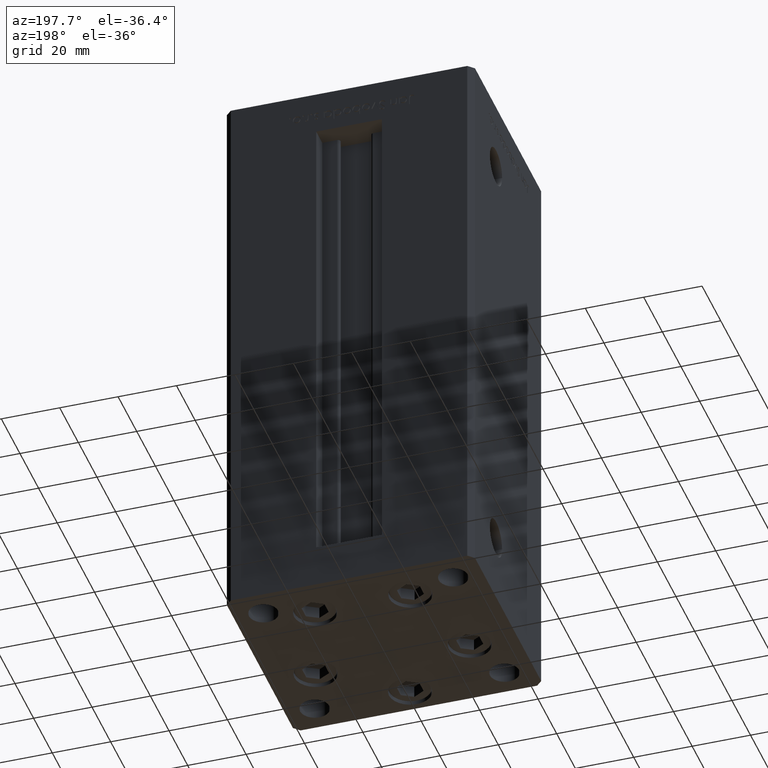
[diagram: clean part render]
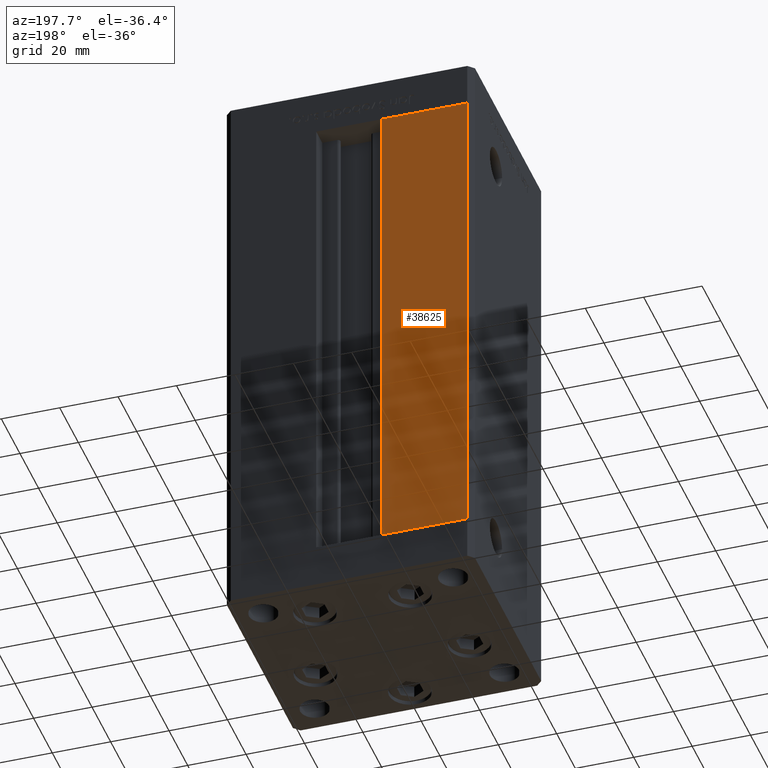
[diagram: same view with one face highlighted and labeled with its STEP entity id]
A machine part, auxiliary view. The second image highlights one B-rep face of the part: STEP entity #38625.
In plain terms, the highlighted planar face has unit normal (-0, -1, 0).
Its self-contained STEP definition (entity closure, byte-faithful):
#212 = DIRECTION ( 'NONE',  ( 1.000000000000000000, 0.000000000000000000, 0.000000000000000000 ) ) ;
#2932 = VECTOR ( 'NONE', #21755, 1000.000000000000000 ) ;
#3890 = VERTEX_POINT ( 'NONE', #33853 ) ;
#7869 = CARTESIAN_POINT ( 'NONE',  ( -11.25000000000000000, 37.50000000000000000, 168.5000000000000000 ) ) ;
#8774 = VECTOR ( 'NONE', #212, 1000.000000000000000 ) ;
#12285 = AXIS2_PLACEMENT_3D ( 'NONE', #43829, #48322, #51519 ) ;
#13058 = ORIENTED_EDGE ( 'NONE', *, *, #32385, .T. ) ;
#13356 = CARTESIAN_POINT ( 'NONE',  ( -11.25000000000000000, 37.50000000000000000, 0.000000000000000000 ) ) ;
#15004 = DIRECTION ( 'NONE',  ( -0.000000000000000000, -0.000000000000000000, -1.000000000000000000 ) ) ;
#15770 = LINE ( 'NONE', #7869, #8774 ) ;
#16504 = CARTESIAN_POINT ( 'NONE',  ( -11.25000000000000000, 37.50000000000000000, 0.000000000000000000 ) ) ;
#20619 = PLANE ( 'NONE',  #12285 ) ;
#21755 = DIRECTION ( 'NONE',  ( -0.000000000000000000, -0.000000000000000000, 1.000000000000000000 ) ) ;
#23297 = CARTESIAN_POINT ( 'NONE',  ( -40.50000000000000000, 37.50000000000000711, 0.000000000000000000 ) ) ;
#24039 = DIRECTION ( 'NONE',  ( -1.000000000000000000, 2.372271420139223331E-16, 0.000000000000000000 ) ) ;
#25519 = ORIENTED_EDGE ( 'NONE', *, *, #30257, .F. ) ;
#26163 = CARTESIAN_POINT ( 'NONE',  ( -11.25000000000000000, 37.50000000000000000, 168.5000000000000000 ) ) ;
#26304 = VERTEX_POINT ( 'NONE', #16504 ) ;
#27351 = VERTEX_POINT ( 'NONE', #23297 ) ;
#30257 = EDGE_CURVE ( 'NONE', #3890, #27351, #35017, .T. ) ;
#32385 = EDGE_CURVE ( 'NONE', #3890, #37457, #15770, .T. ) ;
#33853 = CARTESIAN_POINT ( 'NONE',  ( -40.50000000000000000, 37.50000000000000711, 168.5000000000000000 ) ) ;
#34191 = EDGE_LOOP ( 'NONE', ( #13058, #47460, #44893, #25519 ) ) ;
#35017 = LINE ( 'NONE', #38449, #45718 ) ;
#35556 = EDGE_CURVE ( 'NONE', #26304, #37457, #46024, .T. ) ;
#37457 = VERTEX_POINT ( 'NONE', #26163 ) ;
#38449 = CARTESIAN_POINT ( 'NONE',  ( -40.50000000000000000, 37.50000000000000711, 168.5000000000000000 ) ) ;
#38625 = ADVANCED_FACE ( 'NONE', ( #47540 ), #20619, .F. ) ;
#43829 = CARTESIAN_POINT ( 'NONE',  ( -11.25000000000000000, 37.50000000000000000, 168.5000000000000000 ) ) ;
#44343 = LINE ( 'NONE', #52026, #46981 ) ;
#44893 = ORIENTED_EDGE ( 'NONE', *, *, #49791, .T. ) ;
#45718 = VECTOR ( 'NONE', #15004, 1000.000000000000000 ) ;
#46024 = LINE ( 'NONE', #13356, #2932 ) ;
#46981 = VECTOR ( 'NONE', #24039, 1000.000000000000000 ) ;
#47460 = ORIENTED_EDGE ( 'NONE', *, *, #35556, .F. ) ;
#47540 = FACE_OUTER_BOUND ( 'NONE', #34191, .T. ) ;
#48322 = DIRECTION ( 'NONE',  ( -2.372271420139223331E-16, -1.000000000000000000, 0.000000000000000000 ) ) ;
#49791 = EDGE_CURVE ( 'NONE', #26304, #27351, #44343, .T. ) ;
#51519 = DIRECTION ( 'NONE',  ( 1.000000000000000000, -2.372271420139223331E-16, 0.000000000000000000 ) ) ;
#52026 = CARTESIAN_POINT ( 'NONE',  ( -11.25000000000000000, 37.50000000000000000, 0.000000000000000000 ) ) ;